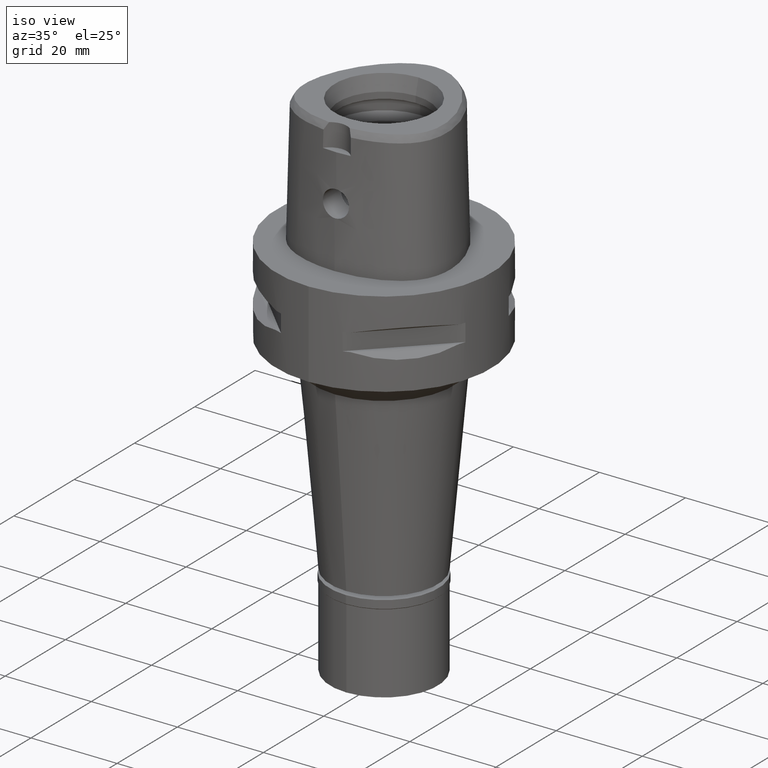
[diagram: clean part render]
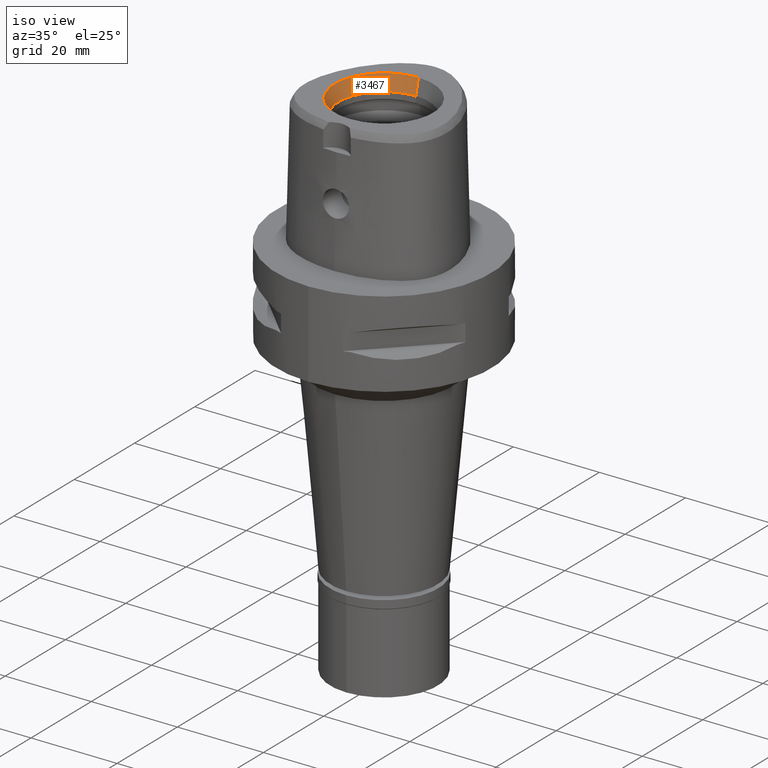
[diagram: same view with one face highlighted and labeled with its STEP entity id]
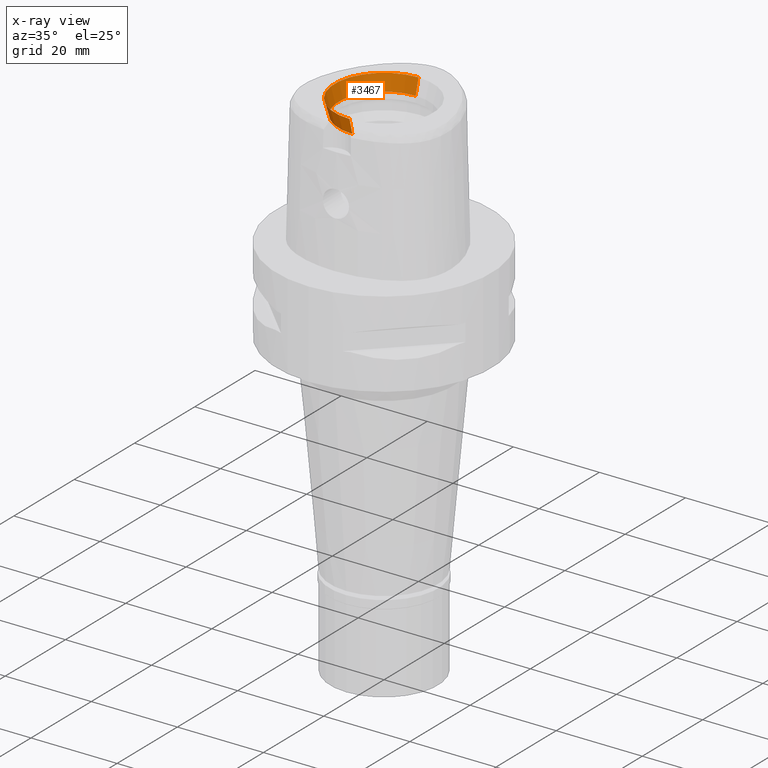
[diagram: x-ray of the same camera — body ghosted, the highlighted face saturated]
A machine part, iso view. The second image highlights one B-rep face of the part: STEP entity #3467.
The next image is the same camera in x-ray: the body ghosted, the highlighted face saturated — about 0% of this face is hidden behind the body in this view.
In plain terms, the highlighted conical surface has half-angle 15 deg.
Its self-contained STEP definition (entity closure, byte-faithful):
#46 = ORIENTED_EDGE ( 'NONE', *, *, #352, .F. ) ;
#83 = CARTESIAN_POINT ( 'NONE',  ( 0.0000000000000000000, 1.570609519905999910E-14, 30.00000000000000000 ) ) ;
#203 = AXIS2_PLACEMENT_3D ( 'NONE', #537, #2356, #3134 ) ;
#352 = EDGE_CURVE ( 'NONE', #1306, #2021, #2971, .T. ) ;
#441 = CARTESIAN_POINT ( 'NONE',  ( 0.0000000000000000000, 10.50000000000000000, 26.50000000000000000 ) ) ;
#443 = AXIS2_PLACEMENT_3D ( 'NONE', #2581, #1804, #4463 ) ;
#537 = CARTESIAN_POINT ( 'NONE',  ( 0.0000000000000000000, 1.570609519905999910E-14, 26.50000000000000000 ) ) ;
#624 = CARTESIAN_POINT ( 'NONE',  ( 0.0000000000000000000, -10.50000000000000000, 26.50000000000000000 ) ) ;
#678 = DIRECTION ( 'NONE',  ( 0.0000000000000000000, -0.2588190451023999472, 0.9659258262891006197 ) ) ;
#1031 = VECTOR ( 'NONE', #3409, 1000.000000000000114 ) ;
#1215 = DIRECTION ( 'NONE',  ( 0.0000000000000000000, 1.000000000000000000, 0.0000000000000000000 ) ) ;
#1258 = CARTESIAN_POINT ( 'NONE',  ( 0.0000000000000000000, -11.43782217350000074, 30.00000000000000000 ) ) ;
#1306 = VERTEX_POINT ( 'NONE', #4460 ) ;
#1613 = VERTEX_POINT ( 'NONE', #1772 ) ;
#1772 = CARTESIAN_POINT ( 'NONE',  ( 0.0000000000000000000, 11.43782217350000074, 30.00000000000000000 ) ) ;
#1804 = DIRECTION ( 'NONE',  ( 0.0000000000000000000, 0.0000000000000000000, 1.000000000000000000 ) ) ;
#1896 = CARTESIAN_POINT ( 'NONE',  ( 0.0000000000000000000, 10.50000000000000000, 26.50000000000000000 ) ) ;
#2021 = VERTEX_POINT ( 'NONE', #1258 ) ;
#2230 = ORIENTED_EDGE ( 'NONE', *, *, #4435, .F. ) ;
#2271 = VERTEX_POINT ( 'NONE', #441 ) ;
#2356 = DIRECTION ( 'NONE',  ( 0.0000000000000000000, 0.0000000000000000000, 1.000000000000000000 ) ) ;
#2425 = CONICAL_SURFACE ( 'NONE', #443, 10.96891108674999948, 0.2617993877991000029 ) ;
#2448 = EDGE_CURVE ( 'NONE', #2271, #1613, #3825, .T. ) ;
#2581 = CARTESIAN_POINT ( 'NONE',  ( 0.0000000000000000000, 1.570609519905999910E-14, 28.25000000000000000 ) ) ;
#2713 = ORIENTED_EDGE ( 'NONE', *, *, #4859, .T. ) ;
#2834 = VECTOR ( 'NONE', #678, 1000.000000000000114 ) ;
#2905 = FACE_OUTER_BOUND ( 'NONE', #3218, .T. ) ;
#2971 = LINE ( 'NONE', #624, #2834 ) ;
#2999 = CIRCLE ( 'NONE', #4772, 11.43782217350000074 ) ;
#3072 = CIRCLE ( 'NONE', #203, 10.50000000000000000 ) ;
#3134 = DIRECTION ( 'NONE',  ( 0.0000000000000000000, 1.000000000000000000, 0.0000000000000000000 ) ) ;
#3218 = EDGE_LOOP ( 'NONE', ( #46, #2230, #4080, #2713 ) ) ;
#3409 = DIRECTION ( 'NONE',  ( 0.0000000000000000000, 0.2588190451023999472, 0.9659258262891006197 ) ) ;
#3467 = ADVANCED_FACE ( 'NONE', ( #2905 ), #2425, .F. ) ;
#3825 = LINE ( 'NONE', #1896, #1031 ) ;
#4080 = ORIENTED_EDGE ( 'NONE', *, *, #2448, .T. ) ;
#4435 = EDGE_CURVE ( 'NONE', #2271, #1306, #3072, .T. ) ;
#4460 = CARTESIAN_POINT ( 'NONE',  ( 0.0000000000000000000, -10.50000000000000000, 26.50000000000000000 ) ) ;
#4463 = DIRECTION ( 'NONE',  ( 0.0000000000000000000, 1.000000000000000000, 0.0000000000000000000 ) ) ;
#4648 = DIRECTION ( 'NONE',  ( 0.0000000000000000000, 0.0000000000000000000, 1.000000000000000000 ) ) ;
#4772 = AXIS2_PLACEMENT_3D ( 'NONE', #83, #4648, #1215 ) ;
#4859 = EDGE_CURVE ( 'NONE', #1613, #2021, #2999, .T. ) ;